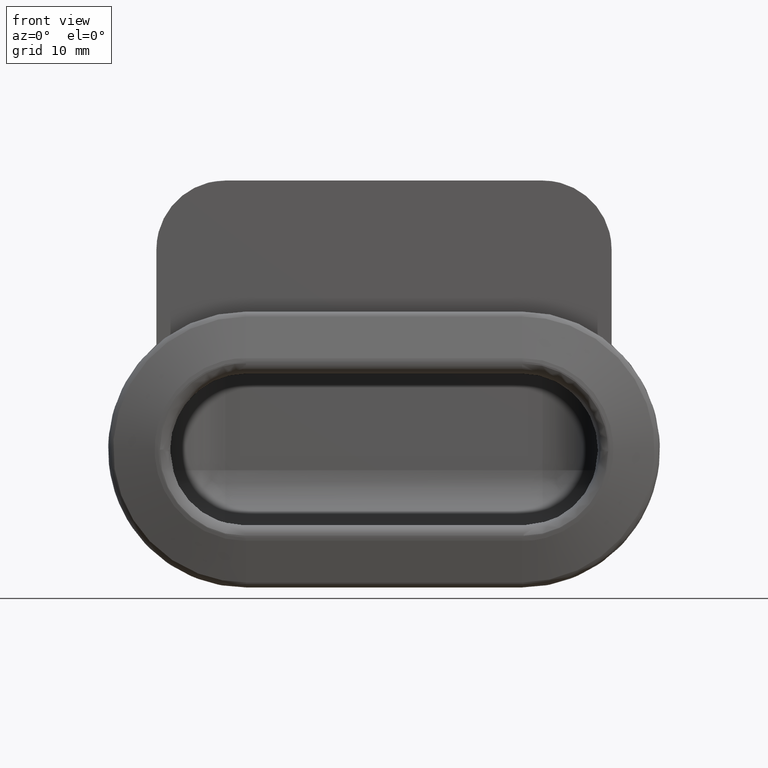
[diagram: clean part render]
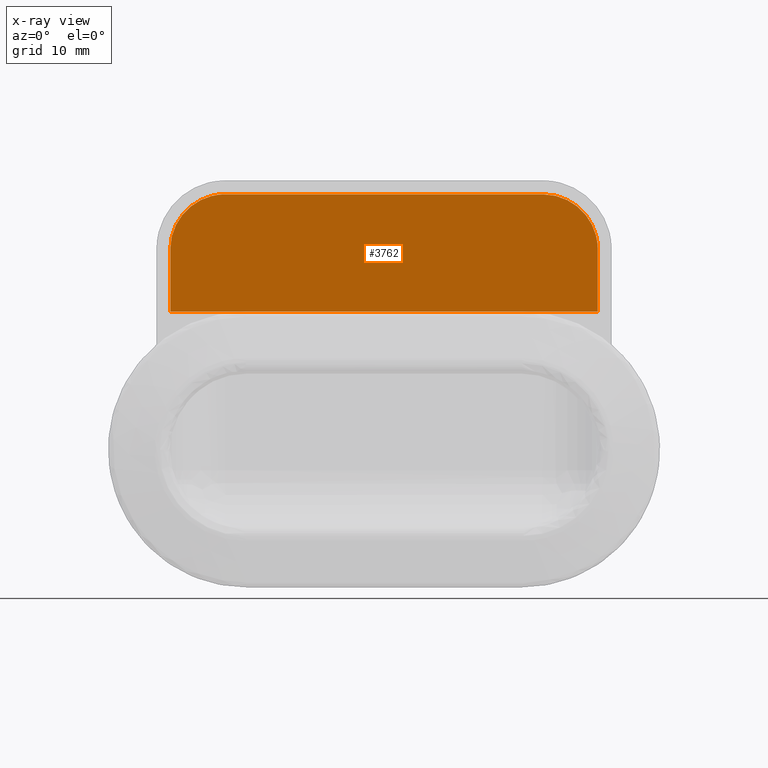
[diagram: x-ray — body ghosted, one internal face saturated and labeled with its STEP entity id]
A machine part, front view, then the same camera in x-ray: the body is ghosted and one INTERNAL B-rep face — a face not visible from any outside direction — is saturated and labeled: STEP entity #3762.
In plain terms, the highlighted face is a freeform B-spline surface patch.
Its self-contained STEP definition (entity closure, byte-faithful):
#3624=CARTESIAN_POINT('',(23.0,7.0,37.0));
#3625=VERTEX_POINT('',#3624);
#3626=CARTESIAN_POINT('',(31.0,7.0,29.0));
#3627=VERTEX_POINT('',#3626);
#3628=CARTESIAN_POINT('',(23.0,7.0,37.000000000000007));
#3629=CARTESIAN_POINT('',(31.000000000000007,6.999999999999999,37.0));
#3630=CARTESIAN_POINT('',(31.0,7.0,29.0));
#3638=(BOUNDED_CURVE()B_SPLINE_CURVE(2,(#3628,#3629,#3630),.UNSPECIFIED.,.F.,.U.)CURVE()GEOMETRIC_REPRESENTATION_ITEM()QUASI_UNIFORM_CURVE()RATIONAL_B_SPLINE_CURVE((1.0,0.707106781186548,1.0))REPRESENTATION_ITEM(''));
#3639=EDGE_CURVE('',#3625,#3627,#3638,.T.);
#3698=CARTESIAN_POINT('',(-31.0,7.0,29.0));
#3699=VERTEX_POINT('',#3698);
#3700=CARTESIAN_POINT('',(-23.0,7.0,37.0));
#3701=VERTEX_POINT('',#3700);
#3702=CARTESIAN_POINT('',(-31.0,7.0,29.0));
#3703=CARTESIAN_POINT('',(-31.000000000000007,6.999999999999999,37.0));
#3704=CARTESIAN_POINT('',(-23.0,7.0,37.000000000000007));
#3712=(BOUNDED_CURVE()B_SPLINE_CURVE(2,(#3702,#3703,#3704),.UNSPECIFIED.,.F.,.U.)CURVE()GEOMETRIC_REPRESENTATION_ITEM()QUASI_UNIFORM_CURVE()RATIONAL_B_SPLINE_CURVE((1.0,0.707106781186548,1.0))REPRESENTATION_ITEM(''));
#3713=EDGE_CURVE('',#3699,#3701,#3712,.T.);
#3729=CARTESIAN_POINT('',(-34.096899879831980,7.0,19.150850032949300));
#3730=CARTESIAN_POINT('',(-34.096899879831980,7.0,37.849150423026238));
#3731=CARTESIAN_POINT('',(34.096901542801561,7.0,19.150850032949300));
#3732=CARTESIAN_POINT('',(34.096901542801561,7.0,37.849150423026238));
#3733=B_SPLINE_SURFACE_WITH_KNOTS('',1,1,((#3729,#3731),(#3730,#3732)),.UNSPECIFIED.,.F.,.F.,.U.,(2,2),(2,2),(0.0,18.698300390076941),(0.0,68.193801422633541),.UNSPECIFIED.);
#3734=CARTESIAN_POINT('',(-23.0,7.0,37.0));
#3735=CARTESIAN_POINT('',(23.0,7.0,37.0));
#3736=QUASI_UNIFORM_CURVE('',1,(#3734,#3735),.UNSPECIFIED.,.F.,.U.);
#3737=EDGE_CURVE('',#3701,#3625,#3736,.T.);
#3738=ORIENTED_EDGE('',*,*,#3737,.T.);
#3739=ORIENTED_EDGE('',*,*,#3639,.T.);
#3740=CARTESIAN_POINT('',(31.0,7.0,20.0));
#3741=VERTEX_POINT('',#3740);
#3742=CARTESIAN_POINT('',(31.0,7.0,20.0));
#3743=CARTESIAN_POINT('',(31.0,7.0,29.0));
#3744=QUASI_UNIFORM_CURVE('',1,(#3742,#3743),.UNSPECIFIED.,.F.,.U.);
#3745=EDGE_CURVE('',#3741,#3627,#3744,.T.);
#3746=ORIENTED_EDGE('',*,*,#3745,.F.);
#3747=CARTESIAN_POINT('',(-31.0,7.0,20.0));
#3748=VERTEX_POINT('',#3747);
#3749=CARTESIAN_POINT('',(-31.0,7.0,20.0));
#3750=CARTESIAN_POINT('',(31.0,7.0,20.0));
#3751=QUASI_UNIFORM_CURVE('',1,(#3749,#3750),.UNSPECIFIED.,.F.,.U.);
#3752=EDGE_CURVE('',#3748,#3741,#3751,.T.);
#3753=ORIENTED_EDGE('',*,*,#3752,.F.);
#3754=CARTESIAN_POINT('',(-31.0,7.0,20.0));
#3755=CARTESIAN_POINT('',(-31.0,7.0,29.0));
#3756=QUASI_UNIFORM_CURVE('',1,(#3754,#3755),.UNSPECIFIED.,.F.,.U.);
#3757=EDGE_CURVE('',#3748,#3699,#3756,.T.);
#3758=ORIENTED_EDGE('',*,*,#3757,.T.);
#3759=ORIENTED_EDGE('',*,*,#3713,.T.);
#3760=EDGE_LOOP('',(#3738,#3739,#3746,#3753,#3758,#3759));
#3761=FACE_OUTER_BOUND('',#3760,.T.);
#3762=ADVANCED_FACE('',(#3761),#3733,.T.);